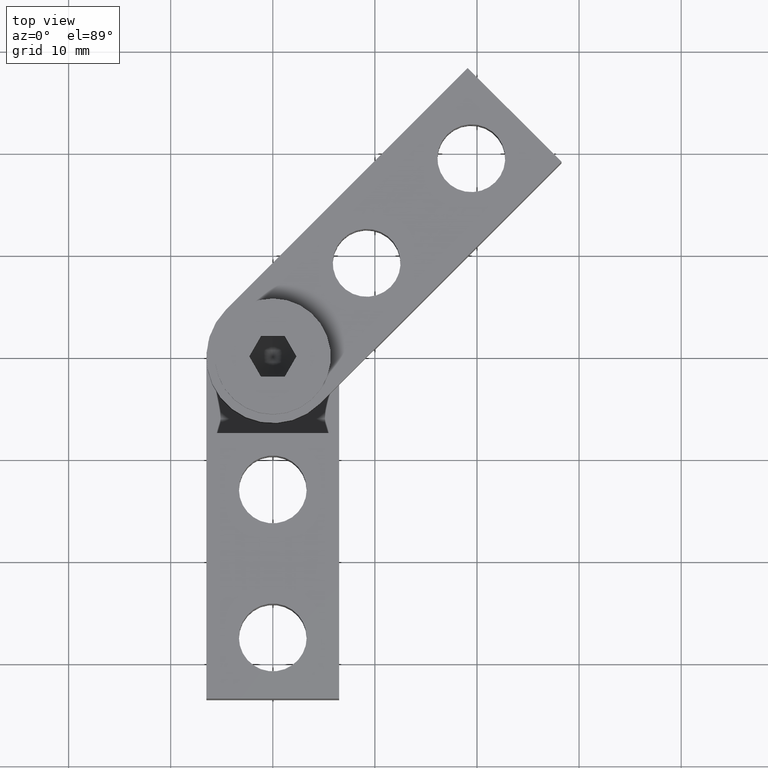
[diagram: clean part render]
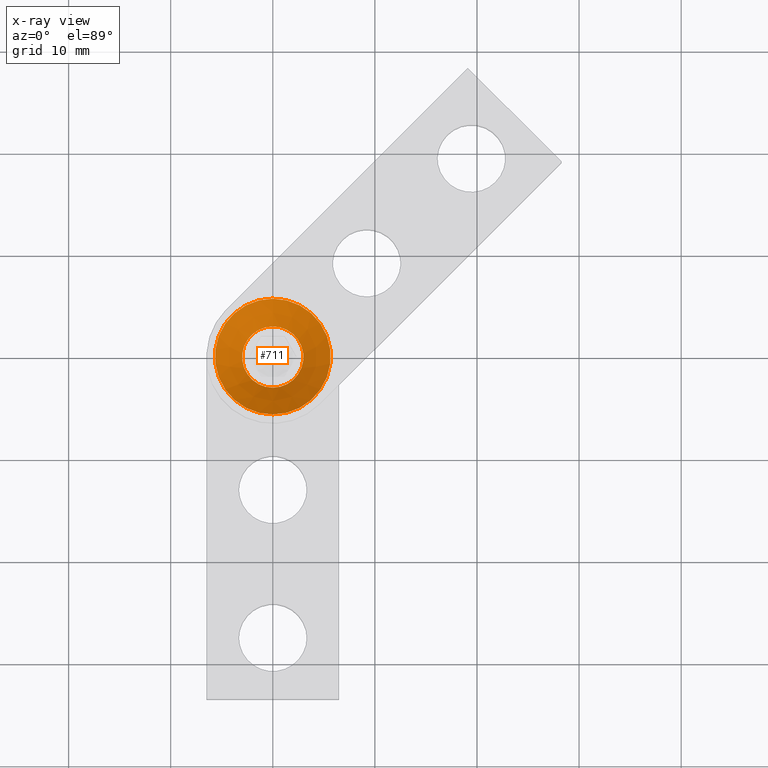
[diagram: x-ray — body ghosted, one internal face saturated and labeled with its STEP entity id]
A machine part, top view, then the same camera in x-ray: the body is ghosted and one INTERNAL B-rep face — a face not visible from any outside direction — is saturated and labeled: STEP entity #711.
In plain terms, the highlighted conical surface has half-angle 45 deg.
Its self-contained STEP definition (entity closure, byte-faithful):
#33=CONICAL_SURFACE('',#863,4.33500000000001,0.785398163397448);
#116=FACE_OUTER_BOUND('',#165,.T.);
#165=EDGE_LOOP('',(#660,#661,#662,#663,#664,#665));
#221=LINE('',#1291,#277);
#277=VECTOR('',#1068,4.33500000000001);
#305=CIRCLE('',#847,3.);
#306=CIRCLE('',#848,3.);
#309=CIRCLE('',#861,5.67000000000001);
#310=CIRCLE('',#862,5.67000000000001);
#358=VERTEX_POINT('',#1218);
#359=VERTEX_POINT('',#1220);
#376=VERTEX_POINT('',#1285);
#377=VERTEX_POINT('',#1286);
#446=EDGE_CURVE('',#358,#359,#305,.T.);
#447=EDGE_CURVE('',#359,#358,#306,.T.);
#470=EDGE_CURVE('',#376,#377,#309,.T.);
#471=EDGE_CURVE('',#377,#376,#310,.T.);
#473=EDGE_CURVE('',#358,#377,#221,.T.);
#660=ORIENTED_EDGE('',*,*,#447,.F.);
#661=ORIENTED_EDGE('',*,*,#446,.F.);
#662=ORIENTED_EDGE('',*,*,#473,.T.);
#663=ORIENTED_EDGE('',*,*,#471,.T.);
#664=ORIENTED_EDGE('',*,*,#470,.T.);
#665=ORIENTED_EDGE('',*,*,#473,.F.);
#711=ADVANCED_FACE('',(#116),#33,.T.);
#847=AXIS2_PLACEMENT_3D('',#1221,#1020,#1021);
#848=AXIS2_PLACEMENT_3D('',#1222,#1022,#1023);
#861=AXIS2_PLACEMENT_3D('',#1287,#1061,#1062);
#862=AXIS2_PLACEMENT_3D('',#1288,#1063,#1064);
#863=AXIS2_PLACEMENT_3D('',#1290,#1066,#1067);
#1020=DIRECTION('center_axis',(1.,-4.72825858056173E-21,0.));
#1021=DIRECTION('ref_axis',(0.,1.,0.));
#1022=DIRECTION('center_axis',(1.,-4.72825858056173E-21,0.));
#1023=DIRECTION('ref_axis',(0.,1.,0.));
#1061=DIRECTION('center_axis',(1.,-4.72825858056173E-21,0.));
#1062=DIRECTION('ref_axis',(0.,1.,0.));
#1063=DIRECTION('center_axis',(1.,-4.72825858056173E-21,0.));
#1064=DIRECTION('ref_axis',(0.,1.,0.));
#1066=DIRECTION('center_axis',(-1.,4.72825858056173E-21,0.));
#1067=DIRECTION('ref_axis',(0.,1.,0.));
#1068=DIRECTION('',(-0.707106781186548,-0.707106781186547,-8.65956056235493E-17));
#1218=CARTESIAN_POINT('',(3.71999999999999,-2.99999999999999,-3.67394039744205E-16));
#1220=CARTESIAN_POINT('',(3.71999999999999,3.,0.));
#1221=CARTESIAN_POINT('Origin',(3.71999999999999,2.96934638856318E-20,0.));
#1222=CARTESIAN_POINT('Origin',(3.71999999999999,2.96934638856318E-20,0.));
#1285=CARTESIAN_POINT('',(1.04999999999998,5.67000000000001,0.));
#1286=CARTESIAN_POINT('',(1.04999999999998,-5.67000000000001,-6.94374735116551E-16));
#1287=CARTESIAN_POINT('Origin',(1.04999999999998,4.23179142957317E-20,0.));
#1288=CARTESIAN_POINT('Origin',(1.04999999999998,4.23179142957317E-20,0.));
#1290=CARTESIAN_POINT('Origin',(2.38499999999998,3.60056890906818E-20,0.));
#1291=CARTESIAN_POINT('',(2.38499999999998,-4.33500000000001,-5.30884387430378E-16));